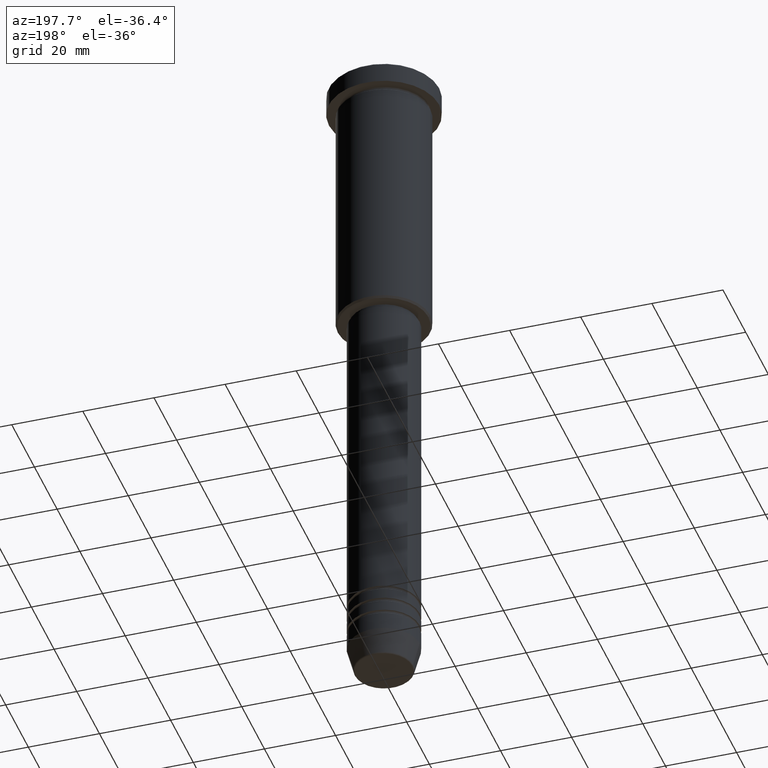
[diagram: clean part render]
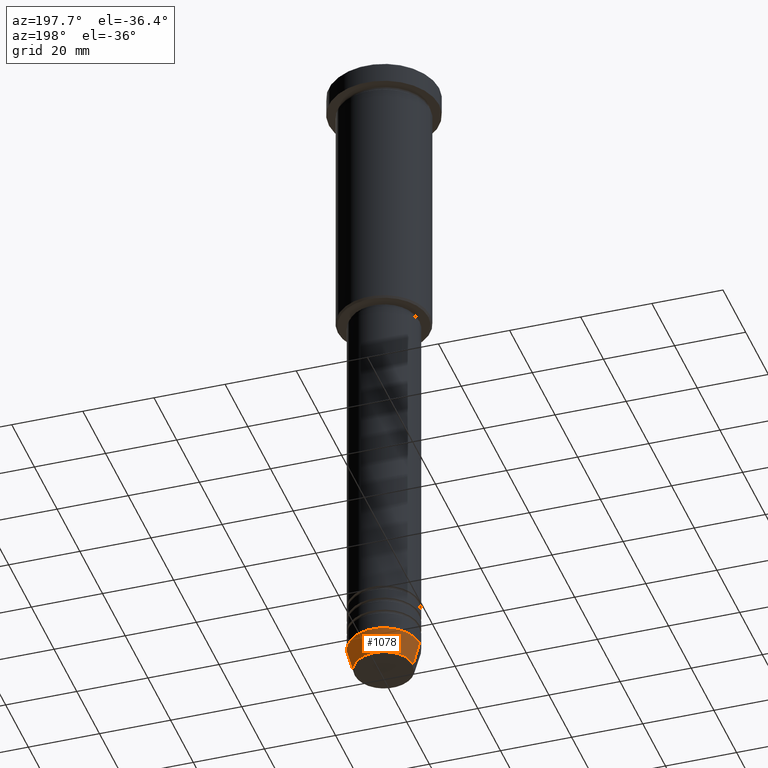
[diagram: same view with one face highlighted and labeled with its STEP entity id]
A machine part, auxiliary view. The second image highlights one B-rep face of the part: STEP entity #1078.
In plain terms, the highlighted conical surface has half-angle 15 deg.
Its self-contained STEP definition (entity closure, byte-faithful):
#3 = FACE_OUTER_BOUND ( 'NONE', #1022, .T. ) ;
#10 = EDGE_CURVE ( 'NONE', #446, #200, #473, .T. ) ;
#35 = ORIENTED_EDGE ( 'NONE', *, *, #10, .T. ) ;
#41 = ORIENTED_EDGE ( 'NONE', *, *, #323, .F. ) ;
#70 = DIRECTION ( 'NONE',  ( 1.000000000000000000, 0.000000000000000000, 0.000000000000000000 ) ) ;
#183 = ORIENTED_EDGE ( 'NONE', *, *, #437, .T. ) ;
#200 = VERTEX_POINT ( 'NONE', #475 ) ;
#205 = CARTESIAN_POINT ( 'NONE',  ( 10.00000000000000000, 0.000000000000000000, -184.0000000000000000 ) ) ;
#226 = CARTESIAN_POINT ( 'NONE',  ( 0.000000000000000000, 0.000000000000000000, -184.0000000000000000 ) ) ;
#236 = VECTOR ( 'NONE', #566, 1000.000000000000114 ) ;
#289 = LINE ( 'NONE', #205, #236 ) ;
#314 = DIRECTION ( 'NONE',  ( -0.000000000000000000, -0.000000000000000000, 1.000000000000000000 ) ) ;
#323 = EDGE_CURVE ( 'NONE', #561, #647, #388, .T. ) ;
#388 = CIRCLE ( 'NONE', #477, 10.00000000000000000 ) ;
#437 = EDGE_CURVE ( 'NONE', #200, #647, #810, .T. ) ;
#442 = CARTESIAN_POINT ( 'NONE',  ( -10.00000000000000000, 1.224646799147353256E-15, -184.0000000000000000 ) ) ;
#446 = VERTEX_POINT ( 'NONE', #1009 ) ;
#452 = DIRECTION ( 'NONE',  ( 1.000000000000000000, 0.000000000000000000, 0.000000000000000000 ) ) ;
#473 = CIRCLE ( 'NONE', #632, 8.223655072137185940 ) ;
#475 = CARTESIAN_POINT ( 'NONE',  ( -8.223655072137185940, 1.115877042642911659E-15, -190.6294095225512706 ) ) ;
#477 = AXIS2_PLACEMENT_3D ( 'NONE', #226, #314, #616 ) ;
#561 = VERTEX_POINT ( 'NONE', #649 ) ;
#566 = DIRECTION ( 'NONE',  ( 0.2588190451025210725, 0.000000000000000000, 0.9659258262890680902 ) ) ;
#616 = DIRECTION ( 'NONE',  ( 1.000000000000000000, 0.000000000000000000, 0.000000000000000000 ) ) ;
#632 = AXIS2_PLACEMENT_3D ( 'NONE', #1001, #731, #70 ) ;
#638 = CARTESIAN_POINT ( 'NONE',  ( 0.000000000000000000, 0.000000000000000000, -184.0000000000000000 ) ) ;
#643 = DIRECTION ( 'NONE',  ( -0.2588190451025210725, 3.169619151431769255E-17, 0.9659258262890680902 ) ) ;
#647 = VERTEX_POINT ( 'NONE', #762 ) ;
#649 = CARTESIAN_POINT ( 'NONE',  ( 10.00000000000000000, 0.000000000000000000, -184.0000000000000000 ) ) ;
#650 = VECTOR ( 'NONE', #643, 1000.000000000000114 ) ;
#731 = DIRECTION ( 'NONE',  ( -0.000000000000000000, -0.000000000000000000, 1.000000000000000000 ) ) ;
#762 = CARTESIAN_POINT ( 'NONE',  ( -10.00000000000000000, 1.224646799147353256E-15, -184.0000000000000000 ) ) ;
#810 = LINE ( 'NONE', #442, #650 ) ;
#908 = ORIENTED_EDGE ( 'NONE', *, *, #1127, .F. ) ;
#978 = AXIS2_PLACEMENT_3D ( 'NONE', #638, #1086, #452 ) ;
#1001 = CARTESIAN_POINT ( 'NONE',  ( 0.000000000000000000, 0.000000000000000000, -190.6294095225512706 ) ) ;
#1009 = CARTESIAN_POINT ( 'NONE',  ( 8.223655072137185940, 0.000000000000000000, -190.6294095225512706 ) ) ;
#1022 = EDGE_LOOP ( 'NONE', ( #35, #183, #41, #908 ) ) ;
#1078 = ADVANCED_FACE ( 'NONE', ( #3 ), #1174, .T. ) ;
#1086 = DIRECTION ( 'NONE',  ( -0.000000000000000000, -0.000000000000000000, 1.000000000000000000 ) ) ;
#1127 = EDGE_CURVE ( 'NONE', #446, #561, #289, .T. ) ;
#1174 = CONICAL_SURFACE ( 'NONE', #978, 10.00000000000000000, 0.2617993877991497964 ) ;